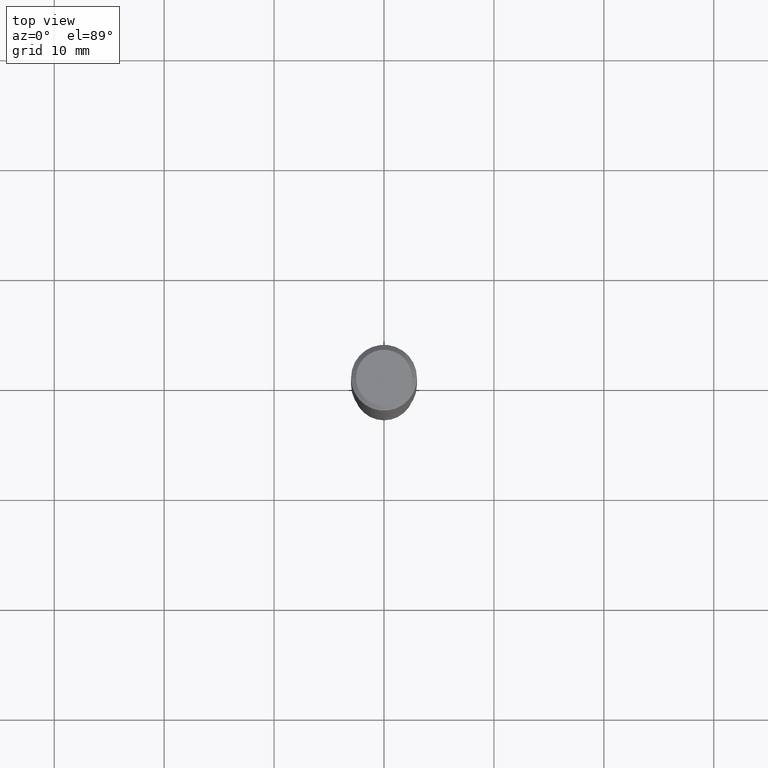
[diagram: clean part render]
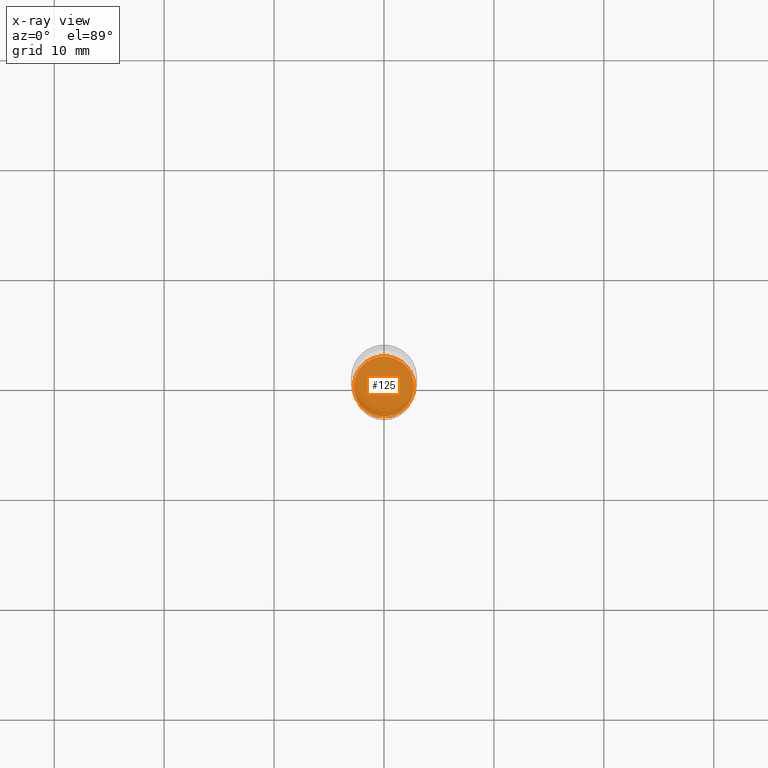
[diagram: x-ray — body ghosted, one internal face saturated and labeled with its STEP entity id]
A machine part, top view, then the same camera in x-ray: the body is ghosted and one INTERNAL B-rep face — a face not visible from any outside direction — is saturated and labeled: STEP entity #125.
In plain terms, the highlighted planar face has unit normal (-0, 0, 1).
Its self-contained STEP definition (entity closure, byte-faithful):
#12 = VERTEX_POINT ( 'NONE', #375 ) ;
#15 = PLANE ( 'NONE',  #194 ) ;
#91 = ORIENTED_EDGE ( 'NONE', *, *, #473, .F. ) ;
#125 = ADVANCED_FACE ( 'NONE', ( #383 ), #15, .F. ) ;
#130 = EDGE_LOOP ( 'NONE', ( #359, #91 ) ) ;
#135 = EDGE_CURVE ( 'NONE', #219, #12, #371, .T. ) ;
#145 = DIRECTION ( 'NONE',  ( -2.445468806185136597E-29, 3.491481338843145583E-15, 1.000000000000000000 ) ) ;
#162 = CARTESIAN_POINT ( 'NONE',  ( 4.428744008001282238E-29, -6.323072704644935995E-15, -1.810999999999999943 ) ) ;
#194 = AXIS2_PLACEMENT_3D ( 'NONE', #271, #461, #311 ) ;
#195 = DIRECTION ( 'NONE',  ( -2.445468806185136597E-29, 3.491481338843145583E-15, 1.000000000000000000 ) ) ;
#209 = CIRCLE ( 'NONE', #316, 0.1077499999999999986 ) ;
#218 = CARTESIAN_POINT ( 'NONE',  ( 4.428744008001282238E-29, -6.323072704644935995E-15, -1.810999999999999943 ) ) ;
#219 = VERTEX_POINT ( 'NONE', #365 ) ;
#271 = CARTESIAN_POINT ( 'NONE',  ( 4.428744008001282238E-29, -6.323072704644935995E-15, -1.810999999999999943 ) ) ;
#286 = DIRECTION ( 'NONE',  ( 1.000000000000000000, -6.982962677686263555E-15, 0.000000000000000000 ) ) ;
#311 = DIRECTION ( 'NONE',  ( 1.000000000000000000, -6.982962677686265922E-15, 4.876176775795935793E-29 ) ) ;
#316 = AXIS2_PLACEMENT_3D ( 'NONE', #218, #145, #286 ) ;
#359 = ORIENTED_EDGE ( 'NONE', *, *, #135, .F. ) ;
#365 = CARTESIAN_POINT ( 'NONE',  ( 0.1077499999999999986, -7.075486933165630854E-15, -1.810999999999999943 ) ) ;
#371 = CIRCLE ( 'NONE', #388, 0.1077499999999999986 ) ;
#375 = CARTESIAN_POINT ( 'NONE',  ( -0.1077499999999999986, -5.554813679689317544E-15, -1.810999999999999943 ) ) ;
#383 = FACE_OUTER_BOUND ( 'NONE', #130, .T. ) ;
#388 = AXIS2_PLACEMENT_3D ( 'NONE', #162, #195, #391 ) ;
#391 = DIRECTION ( 'NONE',  ( 1.000000000000000000, -6.982962677686263555E-15, 0.000000000000000000 ) ) ;
#461 = DIRECTION ( 'NONE',  ( -2.438088387897960049E-29, 3.491481338843145188E-15, 1.000000000000000000 ) ) ;
#473 = EDGE_CURVE ( 'NONE', #12, #219, #209, .T. ) ;